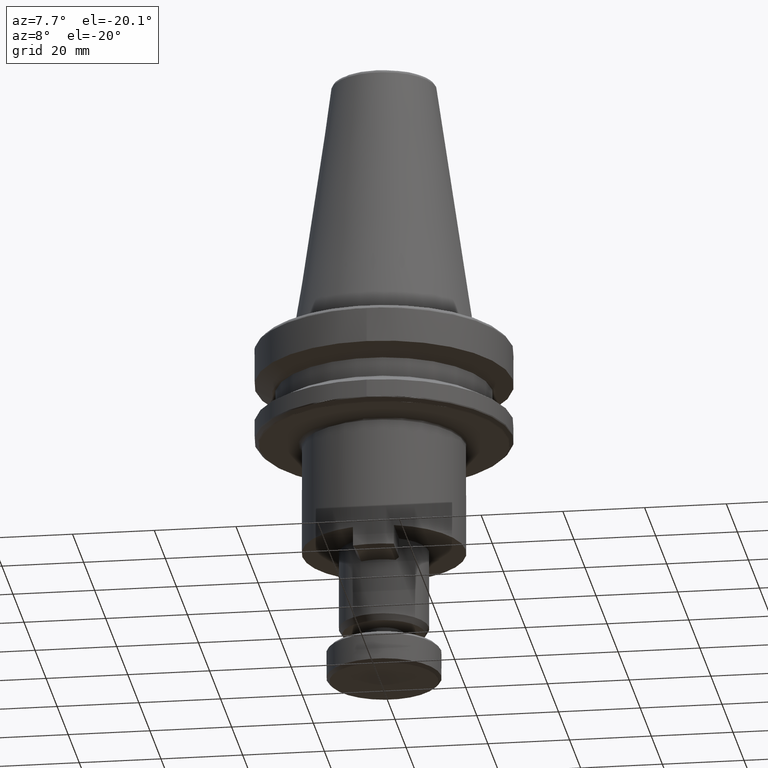
[diagram: clean part render]
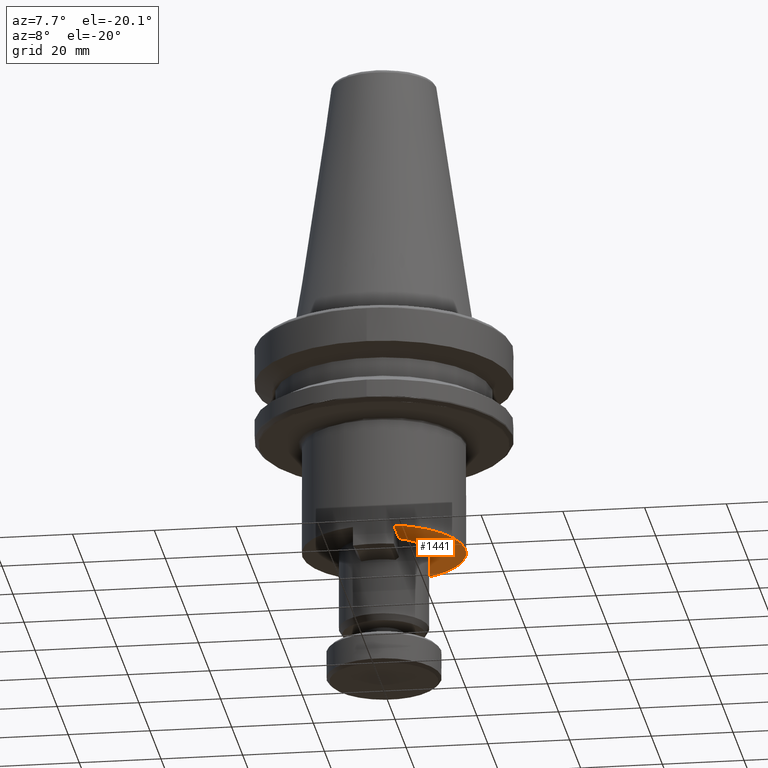
[diagram: same view with one face highlighted and labeled with its STEP entity id]
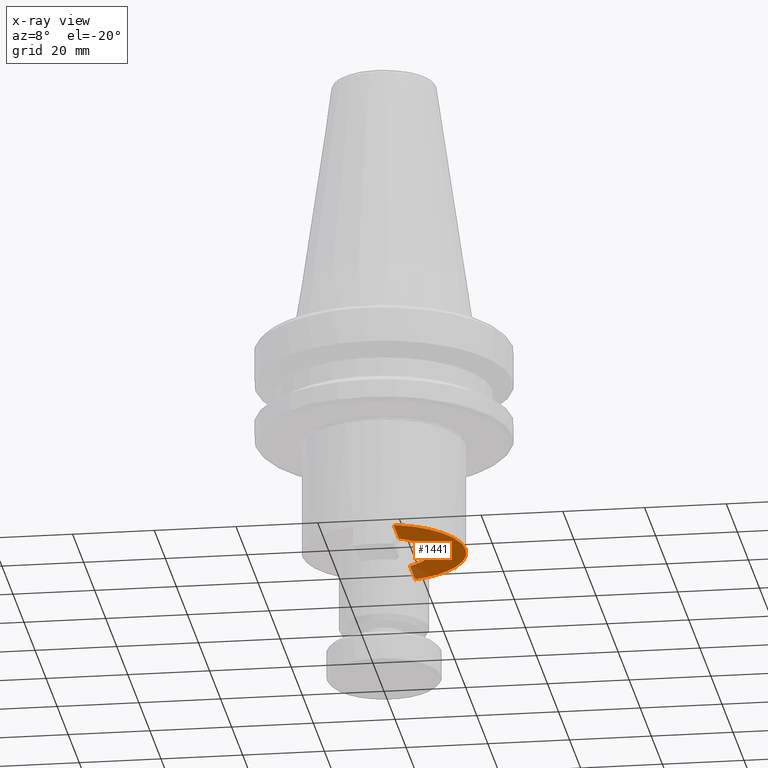
[diagram: x-ray of the same camera — body ghosted, the highlighted face saturated]
A machine part, auxiliary view. The second image highlights one B-rep face of the part: STEP entity #1441.
The next image is the same camera in x-ray: the body ghosted, the highlighted face saturated — about 6% of this face is hidden behind the body in this view.
In plain terms, the highlighted planar face has unit normal (0, 0, 1).
Its self-contained STEP definition (entity closure, byte-faithful):
#53 = CARTESIAN_POINT ( 'NONE',  ( 5.000000000000000000, -19.36491673101854300, -74.44423752281512900 ) ) ;
#80 = DIRECTION ( 'NONE',  ( -0.0000000000000000000, -1.000000000000000000, -0.0000000000000000000 ) ) ;
#101 = LINE ( 'NONE', #885, #2926 ) ;
#162 = CARTESIAN_POINT ( 'NONE',  ( 0.0000000000000000000, 0.0000000000000000000, -74.44423752521512900 ) ) ;
#195 = CIRCLE ( 'NONE', #1314, 20.00000000000000000 ) ;
#199 = CARTESIAN_POINT ( 'NONE',  ( 20.00000000000000000, 0.0000000000000000000, -74.44423752041512900 ) ) ;
#325 = VERTEX_POINT ( 'NONE', #199 ) ;
#486 = CARTESIAN_POINT ( 'NONE',  ( 5.000000000000000000, -19.59729573200000300, -74.44423752521512900 ) ) ;
#550 = LINE ( 'NONE', #1845, #1995 ) ;
#564 = CARTESIAN_POINT ( 'NONE',  ( 11.00000000000000000, 0.0000000000000000000, -74.44423752521512900 ) ) ;
#739 = VERTEX_POINT ( 'NONE', #53 ) ;
#756 = FACE_OUTER_BOUND ( 'NONE', #1538, .T. ) ;
#879 = EDGE_CURVE ( 'NONE', #1843, #3212, #101, .T. ) ;
#885 = CARTESIAN_POINT ( 'NONE',  ( 5.000000000000000000, 0.0000000000000000000, -74.44423752521512900 ) ) ;
#903 = CARTESIAN_POINT ( 'NONE',  ( 4.999999997625244500, 9.797958972344575900, -74.44423752841514400 ) ) ;
#914 = VERTEX_POINT ( 'NONE', #1416 ) ;
#1024 = EDGE_CURVE ( 'NONE', #3212, #2195, #2578, .T. ) ;
#1171 = ORIENTED_EDGE ( 'NONE', *, *, #1930, .F. ) ;
#1183 = EDGE_CURVE ( 'NONE', #914, #739, #550, .T. ) ;
#1314 = AXIS2_PLACEMENT_3D ( 'NONE', #2154, #2434, #2357 ) ;
#1332 = AXIS2_PLACEMENT_3D ( 'NONE', #486, #2077, #1919 ) ;
#1416 = CARTESIAN_POINT ( 'NONE',  ( 5.000000000822213400, -9.797958970293544600, -74.44423752681514400 ) ) ;
#1435 = ORIENTED_EDGE ( 'NONE', *, *, #1183, .F. ) ;
#1441 = ADVANCED_FACE ( 'NONE', ( #756 ), #1597, .F. ) ;
#1450 = ORIENTED_EDGE ( 'NONE', *, *, #879, .F. ) ;
#1538 = EDGE_LOOP ( 'NONE', ( #1878, #1450, #1171, #3223, #1435, #2793 ) ) ;
#1597 = PLANE ( 'NONE',  #1332 ) ;
#1600 = CIRCLE ( 'NONE', #3522, 20.00000000000000000 ) ;
#1602 = CARTESIAN_POINT ( 'NONE',  ( 0.0000000000000000000, 0.0000000000000000000, -74.44423752041512900 ) ) ;
#1622 = DIRECTION ( 'NONE',  ( 1.000000000000000000, 0.0000000000000000000, 0.0000000000000000000 ) ) ;
#1843 = VERTEX_POINT ( 'NONE', #2552 ) ;
#1845 = CARTESIAN_POINT ( 'NONE',  ( 5.000000000000000000, -14.58143785100000000, -74.44423752521512900 ) ) ;
#1878 = ORIENTED_EDGE ( 'NONE', *, *, #1024, .F. ) ;
#1898 = CARTESIAN_POINT ( 'NONE',  ( 0.0000000000000000000, 0.0000000000000000000, -74.44423752521512900 ) ) ;
#1919 = DIRECTION ( 'NONE',  ( 1.000000000000000000, 0.0000000000000000000, 0.0000000000000000000 ) ) ;
#1930 = EDGE_CURVE ( 'NONE', #325, #1843, #1600, .T. ) ;
#1983 = CIRCLE ( 'NONE', #1996, 11.00000000000000000 ) ;
#1995 = VECTOR ( 'NONE', #3479, 1000.000000000000000 ) ;
#1996 = AXIS2_PLACEMENT_3D ( 'NONE', #162, #3137, #2609 ) ;
#2077 = DIRECTION ( 'NONE',  ( 0.0000000000000000000, 0.0000000000000000000, 1.000000000000000000 ) ) ;
#2079 = EDGE_CURVE ( 'NONE', #2195, #914, #1983, .T. ) ;
#2154 = CARTESIAN_POINT ( 'NONE',  ( 0.0000000000000000000, 0.0000000000000000000, -74.44423752041512900 ) ) ;
#2195 = VERTEX_POINT ( 'NONE', #564 ) ;
#2357 = DIRECTION ( 'NONE',  ( 1.000000000000000000, 0.0000000000000000000, 0.0000000000000000000 ) ) ;
#2434 = DIRECTION ( 'NONE',  ( 0.0000000000000000000, 0.0000000000000000000, 1.000000000000000000 ) ) ;
#2552 = CARTESIAN_POINT ( 'NONE',  ( 5.000000000000000000, 19.36491673101854300, -74.44423752281512900 ) ) ;
#2578 = CIRCLE ( 'NONE', #3289, 11.00000000000000000 ) ;
#2609 = DIRECTION ( 'NONE',  ( 1.000000000000000000, 0.0000000000000000000, 0.0000000000000000000 ) ) ;
#2737 = EDGE_CURVE ( 'NONE', #739, #325, #195, .T. ) ;
#2793 = ORIENTED_EDGE ( 'NONE', *, *, #2079, .F. ) ;
#2926 = VECTOR ( 'NONE', #80, 1000.000000000000000 ) ;
#2980 = DIRECTION ( 'NONE',  ( 1.000000000000000000, 0.0000000000000000000, 0.0000000000000000000 ) ) ;
#3137 = DIRECTION ( 'NONE',  ( -0.0000000000000000000, -0.0000000000000000000, -1.000000000000000000 ) ) ;
#3212 = VERTEX_POINT ( 'NONE', #903 ) ;
#3223 = ORIENTED_EDGE ( 'NONE', *, *, #2737, .F. ) ;
#3289 = AXIS2_PLACEMENT_3D ( 'NONE', #1898, #3529, #1622 ) ;
#3479 = DIRECTION ( 'NONE',  ( -0.0000000000000000000, -1.000000000000000000, -0.0000000000000000000 ) ) ;
#3509 = DIRECTION ( 'NONE',  ( 0.0000000000000000000, 0.0000000000000000000, 1.000000000000000000 ) ) ;
#3522 = AXIS2_PLACEMENT_3D ( 'NONE', #1602, #3509, #2980 ) ;
#3529 = DIRECTION ( 'NONE',  ( -0.0000000000000000000, -0.0000000000000000000, -1.000000000000000000 ) ) ;